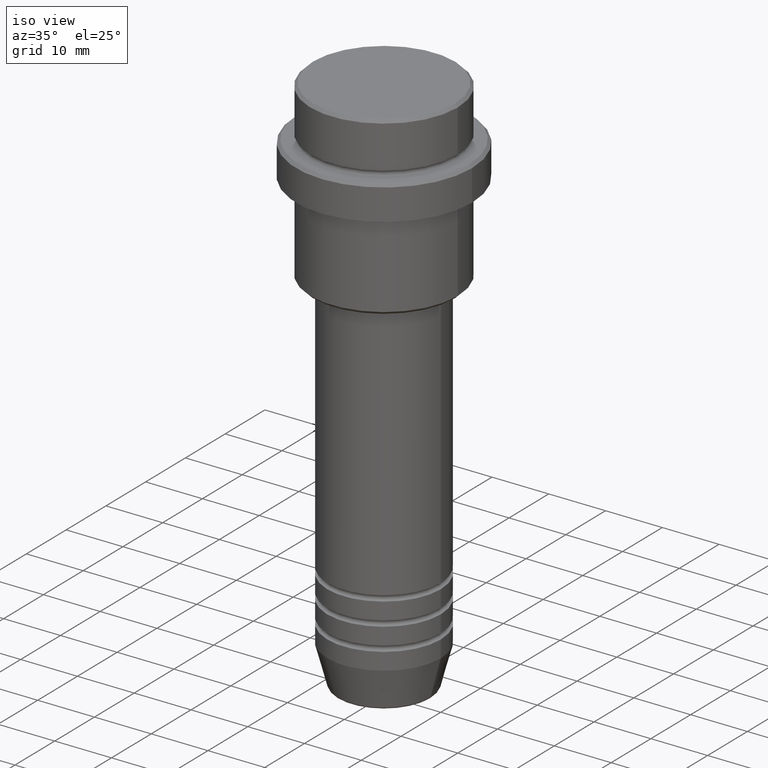
[diagram: clean part render]
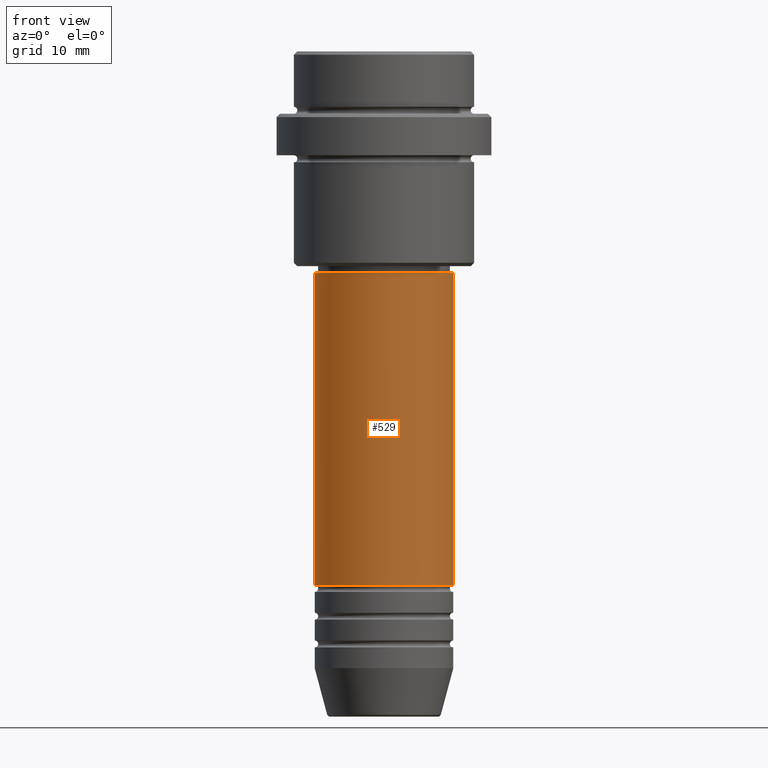
[diagram: tour spotlight — one face highlighted and labeled with its STEP entity id]
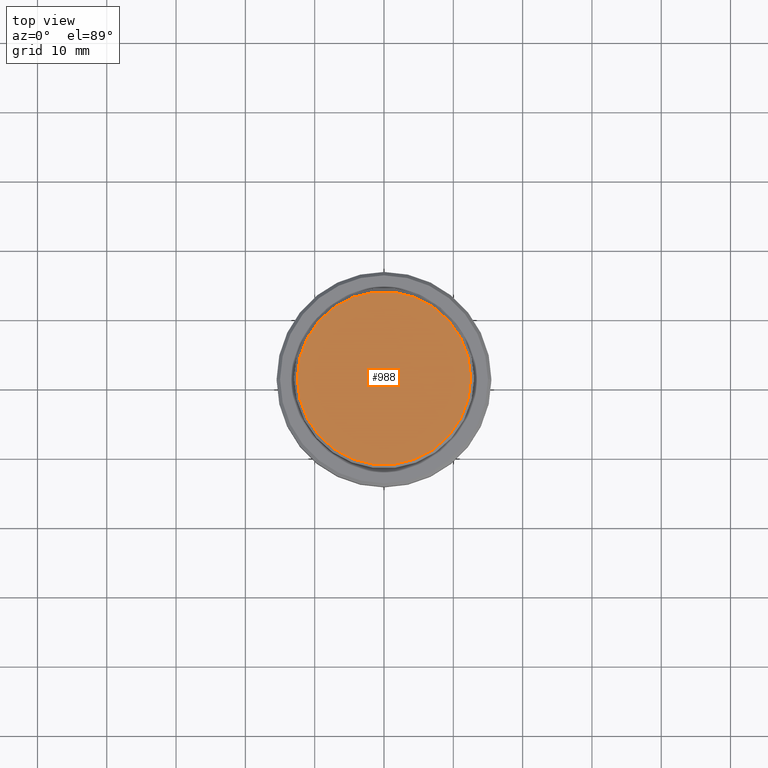
[diagram: tour spotlight — one face highlighted and labeled with its STEP entity id]
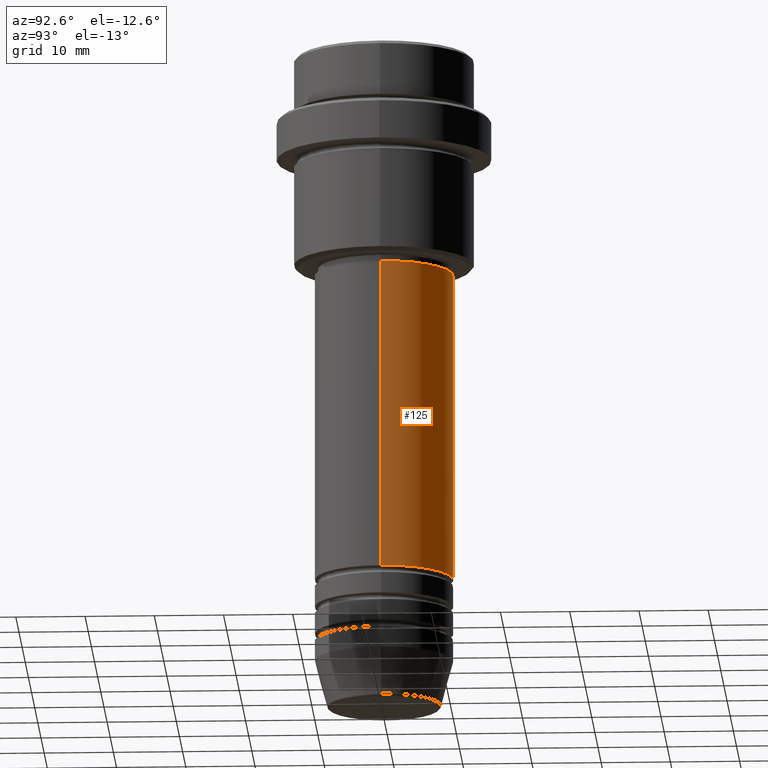
[diagram: tour spotlight — one face highlighted and labeled with its STEP entity id]
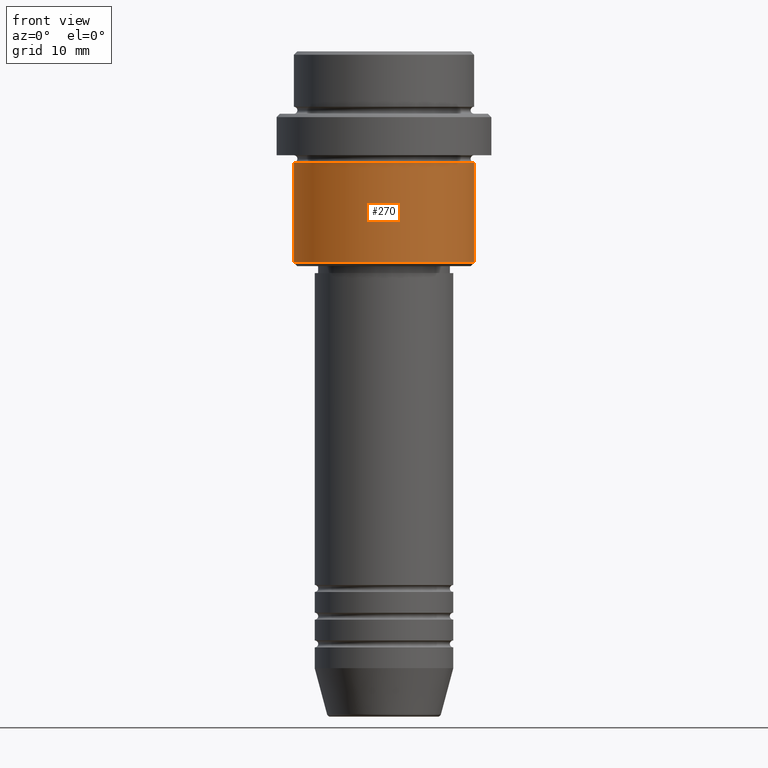
[diagram: tour spotlight — one face highlighted and labeled with its STEP entity id]
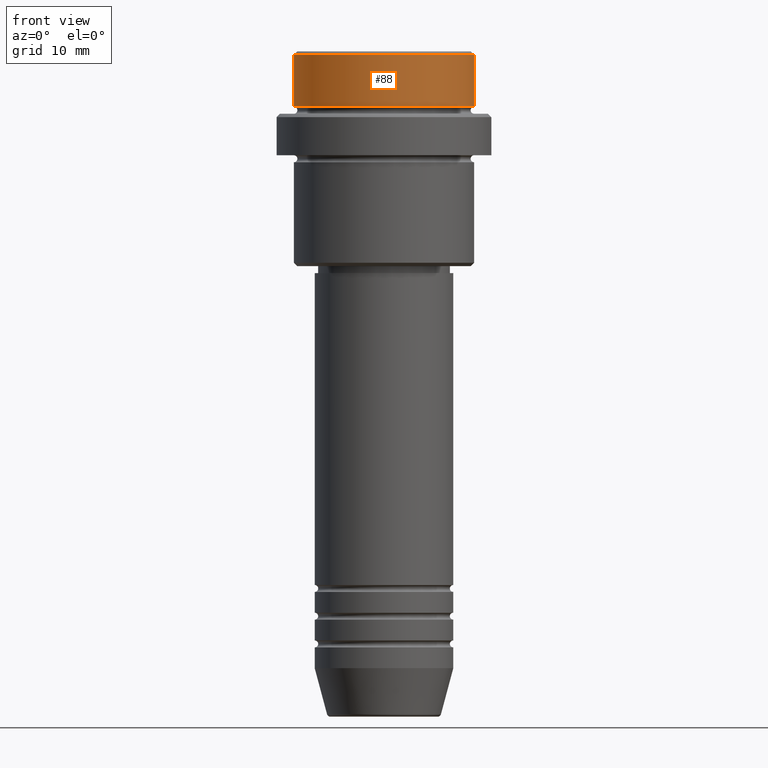
[diagram: tour spotlight — one face highlighted and labeled with its STEP entity id]
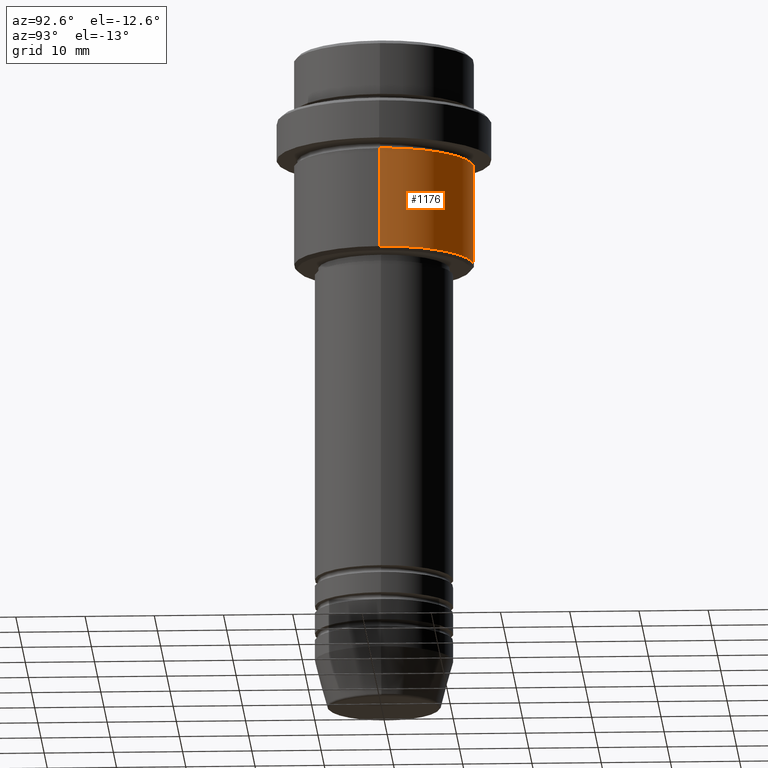
[diagram: tour spotlight — one face highlighted and labeled with its STEP entity id]
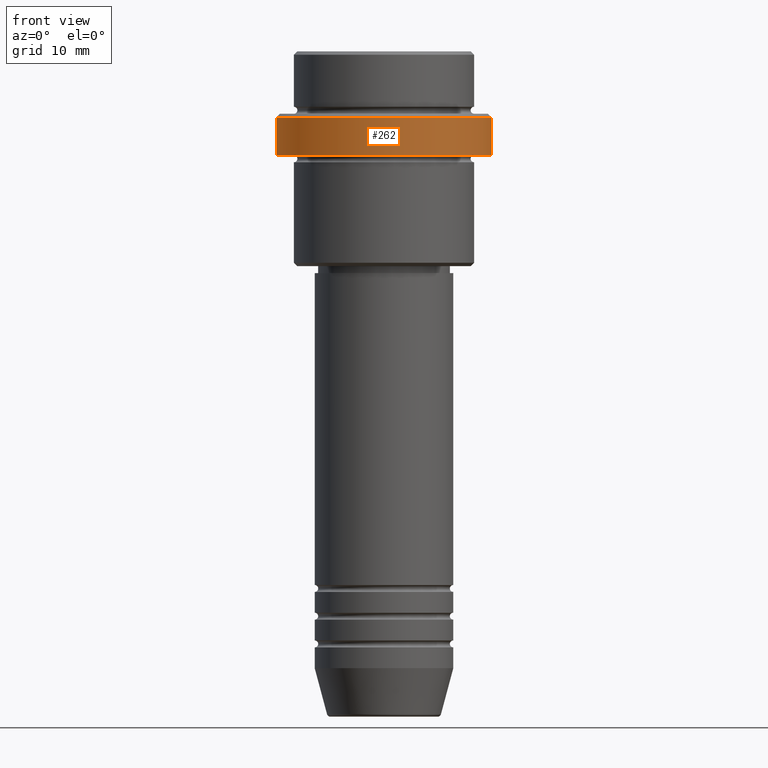
[diagram: tour spotlight — one face highlighted and labeled with its STEP entity id]
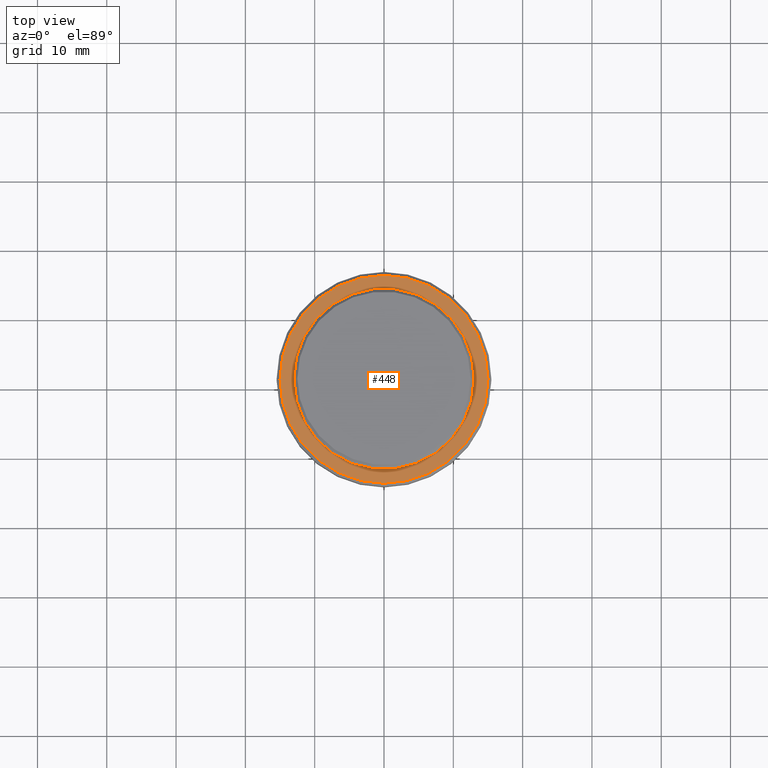
[diagram: tour spotlight — one face highlighted and labeled with its STEP entity id]
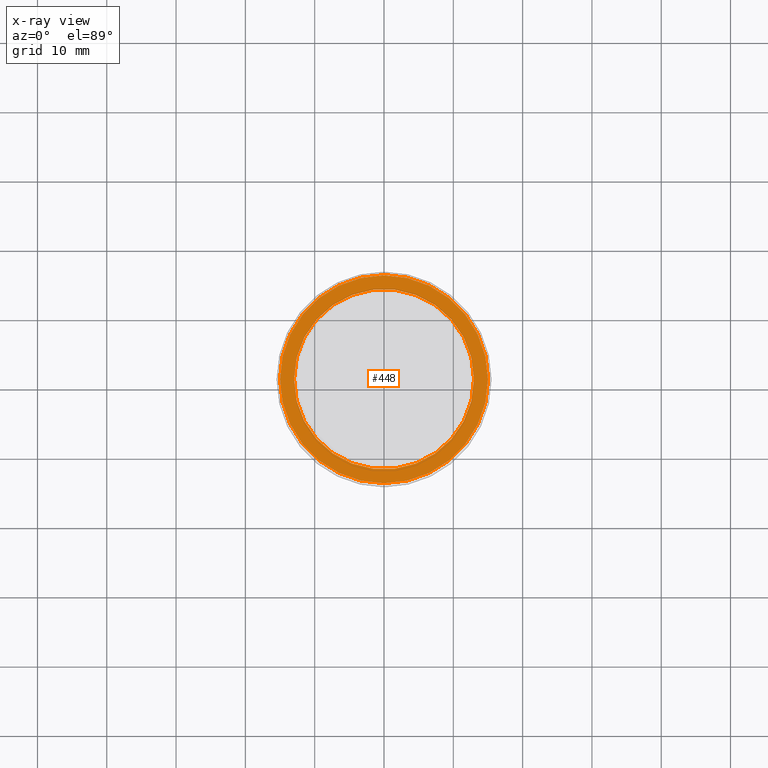
[diagram: x-ray of the same camera — body ghosted, this tour face saturated]
A machine part: a face-by-face anatomy tour. The part has 52 B-rep faces; the first image is the clean iso view, then the 8 largest visible faces are spotlighted one at a time (largest first), each with its STEP entity span.

Face 1 — front view, entity #529. In plain terms, the highlighted cylindrical surface (partial cylindrical patch) has radius 10 mm, axis along (-0, -0, 1).
Definition (entity closure, byte-faithful):
#1 = ORIENTED_EDGE ( 'NONE', *, *, #390, .T. ) ;
#43 = EDGE_CURVE ( 'NONE', #1023, #556, #1269, .T. ) ;
#49 = CIRCLE ( 'NONE', #1038, 10.00000000000000000 ) ;
#148 = DIRECTION ( 'NONE',  ( 1.000000000000000000, 0.000000000000000000, 0.000000000000000000 ) ) ;
#152 = EDGE_CURVE ( 'NONE', #1039, #651, #49, .T. ) ;
#163 = DIRECTION ( 'NONE',  ( 1.000000000000000000, 0.000000000000000000, 0.000000000000000000 ) ) ;
#214 = EDGE_LOOP ( 'NONE', ( #685, #1098, #1, #736 ) ) ;
#247 = DIRECTION ( 'NONE',  ( -0.000000000000000000, -0.000000000000000000, 1.000000000000000000 ) ) ;
#306 = CARTESIAN_POINT ( 'NONE',  ( 10.00000000000000178, 0.000000000000000000, 0.000000000000000000 ) ) ;
#390 = EDGE_CURVE ( 'NONE', #651, #556, #418, .T. ) ;
#404 = VECTOR ( 'NONE', #854, 1000.000000000000000 ) ;
#413 = LINE ( 'NONE', #1280, #1296 ) ;
#418 = LINE ( 'NONE', #306, #404 ) ;
#469 = AXIS2_PLACEMENT_3D ( 'NONE', #697, #247, #148 ) ;
#474 = CYLINDRICAL_SURFACE ( 'NONE', #469, 10.00000000000000178 ) ;
#529 = ADVANCED_FACE ( 'NONE', ( #1018 ), #474, .T. ) ;
#556 = VERTEX_POINT ( 'NONE', #780 ) ;
#651 = VERTEX_POINT ( 'NONE', #1050 ) ;
#684 = CARTESIAN_POINT ( 'NONE',  ( -10.00000000000000000, 1.224646799147353256E-15, -76.99999999999987210 ) ) ;
#685 = ORIENTED_EDGE ( 'NONE', *, *, #985, .F. ) ;
#697 = CARTESIAN_POINT ( 'NONE',  ( 0.000000000000000000, 0.000000000000000000, 0.000000000000000000 ) ) ;
#736 = ORIENTED_EDGE ( 'NONE', *, *, #43, .F. ) ;
#780 = CARTESIAN_POINT ( 'NONE',  ( 10.00000000000000178, 0.000000000000000000, -31.99999999999997868 ) ) ;
#854 = DIRECTION ( 'NONE',  ( -0.000000000000000000, -0.000000000000000000, 1.000000000000000000 ) ) ;
#910 = CARTESIAN_POINT ( 'NONE',  ( 0.000000000000000000, 0.000000000000000000, -31.99999999999997868 ) ) ;
#985 = EDGE_CURVE ( 'NONE', #1039, #1023, #413, .T. ) ;
#1018 = FACE_OUTER_BOUND ( 'NONE', #214, .T. ) ;
#1023 = VERTEX_POINT ( 'NONE', #1057 ) ;
#1032 = DIRECTION ( 'NONE',  ( -0.000000000000000000, -0.000000000000000000, 1.000000000000000000 ) ) ;
#1038 = AXIS2_PLACEMENT_3D ( 'NONE', #1145, #1032, #163 ) ;
#1039 = VERTEX_POINT ( 'NONE', #684 ) ;
#1050 = CARTESIAN_POINT ( 'NONE',  ( 10.00000000000000000, 0.000000000000000000, -76.99999999999987210 ) ) ;
#1057 = CARTESIAN_POINT ( 'NONE',  ( -10.00000000000000178, 1.224646799147353454E-15, -31.99999999999997868 ) ) ;
#1093 = AXIS2_PLACEMENT_3D ( 'NONE', #910, #1124, #1129 ) ;
#1098 = ORIENTED_EDGE ( 'NONE', *, *, #152, .T. ) ;
#1124 = DIRECTION ( 'NONE',  ( -0.000000000000000000, -0.000000000000000000, 1.000000000000000000 ) ) ;
#1129 = DIRECTION ( 'NONE',  ( 1.000000000000000000, 0.000000000000000000, 0.000000000000000000 ) ) ;
#1145 = CARTESIAN_POINT ( 'NONE',  ( 0.000000000000000000, 0.000000000000000000, -76.99999999999987210 ) ) ;
#1269 = CIRCLE ( 'NONE', #1093, 10.00000000000000178 ) ;
#1280 = CARTESIAN_POINT ( 'NONE',  ( -10.00000000000000178, 1.224646799147353454E-15, 0.000000000000000000 ) ) ;
#1296 = VECTOR ( 'NONE', #1312, 1000.000000000000000 ) ;
#1312 = DIRECTION ( 'NONE',  ( -0.000000000000000000, -0.000000000000000000, 1.000000000000000000 ) ) ;

Face 2 — top view, entity #988. In plain terms, the highlighted planar face has unit normal (0, -0, 1).
Definition (entity closure, byte-faithful):
#25 = EDGE_LOOP ( 'NONE', ( #253, #788 ) ) ;
#38 = EDGE_CURVE ( 'NONE', #462, #1308, #1335, .T. ) ;
#79 = DIRECTION ( 'NONE',  ( -0.000000000000000000, -0.000000000000000000, 1.000000000000000000 ) ) ;
#93 = CARTESIAN_POINT ( 'NONE',  ( 0.000000000000000000, 0.000000000000000000, 0.000000000000000000 ) ) ;
#230 = CARTESIAN_POINT ( 'NONE',  ( 12.50000000000001243, 1.561424668912876097E-15, 0.000000000000000000 ) ) ;
#233 = CIRCLE ( 'NONE', #428, 12.50000000000001243 ) ;
#235 = AXIS2_PLACEMENT_3D ( 'NONE', #350, #371, #692 ) ;
#253 = ORIENTED_EDGE ( 'NONE', *, *, #974, .T. ) ;
#292 = FACE_OUTER_BOUND ( 'NONE', #25, .T. ) ;
#350 = CARTESIAN_POINT ( 'NONE',  ( 0.000000000000000000, 0.000000000000000000, 0.000000000000000000 ) ) ;
#371 = DIRECTION ( 'NONE',  ( -0.000000000000000000, -0.000000000000000000, 1.000000000000000000 ) ) ;
#428 = AXIS2_PLACEMENT_3D ( 'NONE', #93, #79, #1406 ) ;
#438 = CARTESIAN_POINT ( 'NONE',  ( -12.50000000000001243, 0.000000000000000000, 0.000000000000000000 ) ) ;
#439 = CARTESIAN_POINT ( 'NONE',  ( 0.000000000000000000, 0.000000000000000000, 0.000000000000000000 ) ) ;
#462 = VERTEX_POINT ( 'NONE', #230 ) ;
#509 = DIRECTION ( 'NONE',  ( 0.000000000000000000, -0.000000000000000000, 1.000000000000000000 ) ) ;
#535 = DIRECTION ( 'NONE',  ( 1.000000000000000000, 0.000000000000000000, 0.000000000000000000 ) ) ;
#692 = DIRECTION ( 'NONE',  ( 1.000000000000000000, 0.000000000000000000, 0.000000000000000000 ) ) ;
#788 = ORIENTED_EDGE ( 'NONE', *, *, #38, .T. ) ;
#849 = PLANE ( 'NONE',  #1156 ) ;
#974 = EDGE_CURVE ( 'NONE', #1308, #462, #233, .T. ) ;
#988 = ADVANCED_FACE ( 'NONE', ( #292 ), #849, .T. ) ;
#1156 = AXIS2_PLACEMENT_3D ( 'NONE', #439, #509, #535 ) ;
#1308 = VERTEX_POINT ( 'NONE', #438 ) ;
#1335 = CIRCLE ( 'NONE', #235, 12.50000000000001243 ) ;
#1406 = DIRECTION ( 'NONE',  ( 1.000000000000000000, 0.000000000000000000, 0.000000000000000000 ) ) ;

Face 3 — auxiliary view, entity #125. In plain terms, the highlighted cylindrical surface (partial cylindrical patch) has radius 10 mm, axis along (-0, -0, 1).
Definition (entity closure, byte-faithful):
#99 = CARTESIAN_POINT ( 'NONE',  ( 0.000000000000000000, 0.000000000000000000, -31.99999999999997868 ) ) ;
#125 = ADVANCED_FACE ( 'NONE', ( #795 ), #1119, .T. ) ;
#171 = CIRCLE ( 'NONE', #983, 10.00000000000000178 ) ;
#205 = ORIENTED_EDGE ( 'NONE', *, *, #390, .F. ) ;
#245 = DIRECTION ( 'NONE',  ( 1.000000000000000000, 0.000000000000000000, 0.000000000000000000 ) ) ;
#251 = DIRECTION ( 'NONE',  ( 1.000000000000000000, 0.000000000000000000, 0.000000000000000000 ) ) ;
#273 = DIRECTION ( 'NONE',  ( -0.000000000000000000, -0.000000000000000000, 1.000000000000000000 ) ) ;
#306 = CARTESIAN_POINT ( 'NONE',  ( 10.00000000000000178, 0.000000000000000000, 0.000000000000000000 ) ) ;
#346 = AXIS2_PLACEMENT_3D ( 'NONE', #826, #273, #251 ) ;
#390 = EDGE_CURVE ( 'NONE', #651, #556, #418, .T. ) ;
#404 = VECTOR ( 'NONE', #854, 1000.000000000000000 ) ;
#413 = LINE ( 'NONE', #1280, #1296 ) ;
#418 = LINE ( 'NONE', #306, #404 ) ;
#461 = CARTESIAN_POINT ( 'NONE',  ( 0.000000000000000000, 0.000000000000000000, 0.000000000000000000 ) ) ;
#485 = EDGE_LOOP ( 'NONE', ( #1013, #1049, #1295, #205 ) ) ;
#543 = DIRECTION ( 'NONE',  ( -0.000000000000000000, -0.000000000000000000, 1.000000000000000000 ) ) ;
#556 = VERTEX_POINT ( 'NONE', #780 ) ;
#651 = VERTEX_POINT ( 'NONE', #1050 ) ;
#684 = CARTESIAN_POINT ( 'NONE',  ( -10.00000000000000000, 1.224646799147353256E-15, -76.99999999999987210 ) ) ;
#780 = CARTESIAN_POINT ( 'NONE',  ( 10.00000000000000178, 0.000000000000000000, -31.99999999999997868 ) ) ;
#795 = FACE_OUTER_BOUND ( 'NONE', #485, .T. ) ;
#826 = CARTESIAN_POINT ( 'NONE',  ( 0.000000000000000000, 0.000000000000000000, -76.99999999999987210 ) ) ;
#854 = DIRECTION ( 'NONE',  ( -0.000000000000000000, -0.000000000000000000, 1.000000000000000000 ) ) ;
#896 = DIRECTION ( 'NONE',  ( -0.000000000000000000, -0.000000000000000000, 1.000000000000000000 ) ) ;
#920 = EDGE_CURVE ( 'NONE', #651, #1039, #1229, .T. ) ;
#950 = AXIS2_PLACEMENT_3D ( 'NONE', #461, #896, #245 ) ;
#983 = AXIS2_PLACEMENT_3D ( 'NONE', #99, #543, #1417 ) ;
#985 = EDGE_CURVE ( 'NONE', #1039, #1023, #413, .T. ) ;
#1013 = ORIENTED_EDGE ( 'NONE', *, *, #920, .T. ) ;
#1019 = EDGE_CURVE ( 'NONE', #556, #1023, #171, .T. ) ;
#1023 = VERTEX_POINT ( 'NONE', #1057 ) ;
#1039 = VERTEX_POINT ( 'NONE', #684 ) ;
#1049 = ORIENTED_EDGE ( 'NONE', *, *, #985, .T. ) ;
#1050 = CARTESIAN_POINT ( 'NONE',  ( 10.00000000000000000, 0.000000000000000000, -76.99999999999987210 ) ) ;
#1057 = CARTESIAN_POINT ( 'NONE',  ( -10.00000000000000178, 1.224646799147353454E-15, -31.99999999999997868 ) ) ;
#1119 = CYLINDRICAL_SURFACE ( 'NONE', #950, 10.00000000000000178 ) ;
#1229 = CIRCLE ( 'NONE', #346, 10.00000000000000000 ) ;
#1280 = CARTESIAN_POINT ( 'NONE',  ( -10.00000000000000178, 1.224646799147353454E-15, 0.000000000000000000 ) ) ;
#1295 = ORIENTED_EDGE ( 'NONE', *, *, #1019, .F. ) ;
#1296 = VECTOR ( 'NONE', #1312, 1000.000000000000000 ) ;
#1312 = DIRECTION ( 'NONE',  ( -0.000000000000000000, -0.000000000000000000, 1.000000000000000000 ) ) ;
#1417 = DIRECTION ( 'NONE',  ( 1.000000000000000000, 0.000000000000000000, 0.000000000000000000 ) ) ;

Face 4 — front view, entity #270. In plain terms, the highlighted cylindrical surface (partial cylindrical patch) has radius 13 mm, axis along (-0, -0, 1).
Definition (entity closure, byte-faithful):
#21 = CARTESIAN_POINT ( 'NONE',  ( 0.000000000000000000, 0.000000000000000000, -16.00000000000000000 ) ) ;
#34 = VECTOR ( 'NONE', #1263, 1000.000000000000000 ) ;
#89 = CARTESIAN_POINT ( 'NONE',  ( -13.00000000000000000, 1.592040838891559095E-15, -16.00000000000000000 ) ) ;
#108 = VERTEX_POINT ( 'NONE', #470 ) ;
#161 = LINE ( 'NONE', #295, #34 ) ;
#193 = DIRECTION ( 'NONE',  ( -0.000000000000000000, -0.000000000000000000, 1.000000000000000000 ) ) ;
#226 = VERTEX_POINT ( 'NONE', #928 ) ;
#254 = DIRECTION ( 'NONE',  ( -0.000000000000000000, -0.000000000000000000, 1.000000000000000000 ) ) ;
#270 = ADVANCED_FACE ( 'NONE', ( #1284 ), #297, .T. ) ;
#283 = EDGE_CURVE ( 'NONE', #226, #108, #488, .T. ) ;
#295 = CARTESIAN_POINT ( 'NONE',  ( 13.00000000000000000, 0.000000000000000000, 0.000000000000000000 ) ) ;
#297 = CYLINDRICAL_SURFACE ( 'NONE', #608, 13.00000000000000000 ) ;
#348 = CIRCLE ( 'NONE', #980, 13.00000000000000000 ) ;
#354 = CARTESIAN_POINT ( 'NONE',  ( -13.00000000000000000, 1.592040838891559095E-15, 0.000000000000000000 ) ) ;
#356 = DIRECTION ( 'NONE',  ( 1.000000000000000000, 0.000000000000000000, 0.000000000000000000 ) ) ;
#441 = DIRECTION ( 'NONE',  ( -0.000000000000000000, -0.000000000000000000, 1.000000000000000000 ) ) ;
#467 = EDGE_CURVE ( 'NONE', #971, #501, #348, .T. ) ;
#470 = CARTESIAN_POINT ( 'NONE',  ( 13.00000000000000000, 0.000000000000000000, -30.49999999999999645 ) ) ;
#488 = CIRCLE ( 'NONE', #1016, 13.00000000000000000 ) ;
#501 = VERTEX_POINT ( 'NONE', #798 ) ;
#526 = DIRECTION ( 'NONE',  ( 1.000000000000000000, 0.000000000000000000, 0.000000000000000000 ) ) ;
#541 = ORIENTED_EDGE ( 'NONE', *, *, #1060, .F. ) ;
#560 = LINE ( 'NONE', #354, #867 ) ;
#595 = EDGE_CURVE ( 'NONE', #108, #501, #161, .T. ) ;
#600 = ORIENTED_EDGE ( 'NONE', *, *, #595, .T. ) ;
#608 = AXIS2_PLACEMENT_3D ( 'NONE', #743, #193, #526 ) ;
#743 = CARTESIAN_POINT ( 'NONE',  ( 0.000000000000000000, 0.000000000000000000, 0.000000000000000000 ) ) ;
#798 = CARTESIAN_POINT ( 'NONE',  ( 13.00000000000000000, 0.000000000000000000, -16.00000000000000000 ) ) ;
#859 = DIRECTION ( 'NONE',  ( -1.000000000000000000, 0.000000000000000000, 0.000000000000000000 ) ) ;
#867 = VECTOR ( 'NONE', #1209, 1000.000000000000000 ) ;
#928 = CARTESIAN_POINT ( 'NONE',  ( -13.00000000000000000, 1.592040838891559095E-15, -30.49999999999999645 ) ) ;
#971 = VERTEX_POINT ( 'NONE', #89 ) ;
#980 = AXIS2_PLACEMENT_3D ( 'NONE', #21, #254, #356 ) ;
#1016 = AXIS2_PLACEMENT_3D ( 'NONE', #1398, #441, #859 ) ;
#1060 = EDGE_CURVE ( 'NONE', #226, #971, #560, .T. ) ;
#1089 = ORIENTED_EDGE ( 'NONE', *, *, #467, .F. ) ;
#1209 = DIRECTION ( 'NONE',  ( -0.000000000000000000, -0.000000000000000000, 1.000000000000000000 ) ) ;
#1262 = ORIENTED_EDGE ( 'NONE', *, *, #283, .T. ) ;
#1263 = DIRECTION ( 'NONE',  ( -0.000000000000000000, -0.000000000000000000, 1.000000000000000000 ) ) ;
#1284 = FACE_OUTER_BOUND ( 'NONE', #1313, .T. ) ;
#1313 = EDGE_LOOP ( 'NONE', ( #541, #1262, #600, #1089 ) ) ;
#1398 = CARTESIAN_POINT ( 'NONE',  ( 0.000000000000000000, 0.000000000000000000, -30.49999999999999645 ) ) ;

Face 5 — front view, entity #88. In plain terms, the highlighted cylindrical surface (partial cylindrical patch) has radius 13 mm, axis along (-0, -0, 1).
Definition (entity closure, byte-faithful):
#29 = FACE_OUTER_BOUND ( 'NONE', #537, .T. ) ;
#33 = CIRCLE ( 'NONE', #144, 12.99999999999999822 ) ;
#37 = CYLINDRICAL_SURFACE ( 'NONE', #166, 12.99999999999999822 ) ;
#40 = VERTEX_POINT ( 'NONE', #41 ) ;
#41 = CARTESIAN_POINT ( 'NONE',  ( 12.99999999999999822, 0.000000000000000000, -0.5000000000000038858 ) ) ;
#88 = ADVANCED_FACE ( 'NONE', ( #29 ), #37, .T. ) ;
#144 = AXIS2_PLACEMENT_3D ( 'NONE', #1219, #1123, #465 ) ;
#157 = VERTEX_POINT ( 'NONE', #934 ) ;
#166 = AXIS2_PLACEMENT_3D ( 'NONE', #456, #1333, #476 ) ;
#173 = CARTESIAN_POINT ( 'NONE',  ( 12.99999999999999822, 0.000000000000000000, 0.000000000000000000 ) ) ;
#174 = CARTESIAN_POINT ( 'NONE',  ( 0.000000000000000000, 0.000000000000000000, -7.999999999999998224 ) ) ;
#303 = VERTEX_POINT ( 'NONE', #436 ) ;
#316 = LINE ( 'NONE', #539, #1273 ) ;
#325 = ORIENTED_EDGE ( 'NONE', *, *, #669, .T. ) ;
#351 = CIRCLE ( 'NONE', #1109, 12.99999999999999822 ) ;
#400 = EDGE_CURVE ( 'NONE', #157, #1373, #316, .T. ) ;
#436 = CARTESIAN_POINT ( 'NONE',  ( 12.99999999999999822, 0.000000000000000000, -7.999999999999998224 ) ) ;
#456 = CARTESIAN_POINT ( 'NONE',  ( 0.000000000000000000, 0.000000000000000000, 0.000000000000000000 ) ) ;
#465 = DIRECTION ( 'NONE',  ( 1.000000000000000000, 0.000000000000000000, 0.000000000000000000 ) ) ;
#476 = DIRECTION ( 'NONE',  ( 1.000000000000000000, 0.000000000000000000, 0.000000000000000000 ) ) ;
#515 = EDGE_CURVE ( 'NONE', #40, #1373, #33, .T. ) ;
#537 = EDGE_LOOP ( 'NONE', ( #1206, #872, #325, #1199 ) ) ;
#539 = CARTESIAN_POINT ( 'NONE',  ( -12.99999999999999822, 1.592040838891558898E-15, 0.000000000000000000 ) ) ;
#548 = VECTOR ( 'NONE', #717, 1000.000000000000000 ) ;
#669 = EDGE_CURVE ( 'NONE', #303, #40, #946, .T. ) ;
#717 = DIRECTION ( 'NONE',  ( -0.000000000000000000, -0.000000000000000000, 1.000000000000000000 ) ) ;
#764 = DIRECTION ( 'NONE',  ( -0.000000000000000000, -0.000000000000000000, 1.000000000000000000 ) ) ;
#872 = ORIENTED_EDGE ( 'NONE', *, *, #895, .T. ) ;
#895 = EDGE_CURVE ( 'NONE', #157, #303, #351, .T. ) ;
#934 = CARTESIAN_POINT ( 'NONE',  ( -12.99999999999999822, 1.592040838891558898E-15, -7.999999999999998224 ) ) ;
#946 = LINE ( 'NONE', #173, #548 ) ;
#990 = DIRECTION ( 'NONE',  ( 1.000000000000000000, 0.000000000000000000, 0.000000000000000000 ) ) ;
#1109 = AXIS2_PLACEMENT_3D ( 'NONE', #174, #1291, #990 ) ;
#1123 = DIRECTION ( 'NONE',  ( 0.000000000000000000, 0.000000000000000000, -1.000000000000000000 ) ) ;
#1170 = CARTESIAN_POINT ( 'NONE',  ( -12.99999999999999822, 1.592040838891558898E-15, -0.5000000000000038858 ) ) ;
#1199 = ORIENTED_EDGE ( 'NONE', *, *, #515, .T. ) ;
#1206 = ORIENTED_EDGE ( 'NONE', *, *, #400, .F. ) ;
#1219 = CARTESIAN_POINT ( 'NONE',  ( 0.000000000000000000, 0.000000000000000000, -0.5000000000000038858 ) ) ;
#1273 = VECTOR ( 'NONE', #764, 1000.000000000000000 ) ;
#1291 = DIRECTION ( 'NONE',  ( -0.000000000000000000, -0.000000000000000000, 1.000000000000000000 ) ) ;
#1333 = DIRECTION ( 'NONE',  ( -0.000000000000000000, -0.000000000000000000, 1.000000000000000000 ) ) ;
#1373 = VERTEX_POINT ( 'NONE', #1170 ) ;

Face 6 — auxiliary view, entity #1176. In plain terms, the highlighted cylindrical surface (partial cylindrical patch) has radius 13 mm, axis along (-0, -0, 1).
Definition (entity closure, byte-faithful):
#34 = VECTOR ( 'NONE', #1263, 1000.000000000000000 ) ;
#89 = CARTESIAN_POINT ( 'NONE',  ( -13.00000000000000000, 1.592040838891559095E-15, -16.00000000000000000 ) ) ;
#108 = VERTEX_POINT ( 'NONE', #470 ) ;
#150 = FACE_OUTER_BOUND ( 'NONE', #312, .T. ) ;
#161 = LINE ( 'NONE', #295, #34 ) ;
#216 = CARTESIAN_POINT ( 'NONE',  ( 0.000000000000000000, 0.000000000000000000, -16.00000000000000000 ) ) ;
#226 = VERTEX_POINT ( 'NONE', #928 ) ;
#268 = CARTESIAN_POINT ( 'NONE',  ( 0.000000000000000000, 0.000000000000000000, -30.49999999999999645 ) ) ;
#295 = CARTESIAN_POINT ( 'NONE',  ( 13.00000000000000000, 0.000000000000000000, 0.000000000000000000 ) ) ;
#312 = EDGE_LOOP ( 'NONE', ( #833, #1261, #1202, #1022 ) ) ;
#349 = DIRECTION ( 'NONE',  ( 1.000000000000000000, 0.000000000000000000, 0.000000000000000000 ) ) ;
#354 = CARTESIAN_POINT ( 'NONE',  ( -13.00000000000000000, 1.592040838891559095E-15, 0.000000000000000000 ) ) ;
#470 = CARTESIAN_POINT ( 'NONE',  ( 13.00000000000000000, 0.000000000000000000, -30.49999999999999645 ) ) ;
#480 = DIRECTION ( 'NONE',  ( -1.000000000000000000, 0.000000000000000000, 0.000000000000000000 ) ) ;
#486 = DIRECTION ( 'NONE',  ( -0.000000000000000000, -0.000000000000000000, 1.000000000000000000 ) ) ;
#501 = VERTEX_POINT ( 'NONE', #798 ) ;
#560 = LINE ( 'NONE', #354, #867 ) ;
#595 = EDGE_CURVE ( 'NONE', #108, #501, #161, .T. ) ;
#607 = CIRCLE ( 'NONE', #773, 13.00000000000000000 ) ;
#676 = DIRECTION ( 'NONE',  ( 1.000000000000000000, 0.000000000000000000, 0.000000000000000000 ) ) ;
#683 = EDGE_CURVE ( 'NONE', #108, #226, #1162, .T. ) ;
#773 = AXIS2_PLACEMENT_3D ( 'NONE', #216, #1106, #676 ) ;
#798 = CARTESIAN_POINT ( 'NONE',  ( 13.00000000000000000, 0.000000000000000000, -16.00000000000000000 ) ) ;
#815 = CARTESIAN_POINT ( 'NONE',  ( 0.000000000000000000, 0.000000000000000000, 0.000000000000000000 ) ) ;
#817 = AXIS2_PLACEMENT_3D ( 'NONE', #268, #486, #480 ) ;
#833 = ORIENTED_EDGE ( 'NONE', *, *, #683, .T. ) ;
#867 = VECTOR ( 'NONE', #1209, 1000.000000000000000 ) ;
#928 = CARTESIAN_POINT ( 'NONE',  ( -13.00000000000000000, 1.592040838891559095E-15, -30.49999999999999645 ) ) ;
#971 = VERTEX_POINT ( 'NONE', #89 ) ;
#1022 = ORIENTED_EDGE ( 'NONE', *, *, #595, .F. ) ;
#1060 = EDGE_CURVE ( 'NONE', #226, #971, #560, .T. ) ;
#1092 = AXIS2_PLACEMENT_3D ( 'NONE', #815, #1150, #349 ) ;
#1106 = DIRECTION ( 'NONE',  ( -0.000000000000000000, -0.000000000000000000, 1.000000000000000000 ) ) ;
#1150 = DIRECTION ( 'NONE',  ( -0.000000000000000000, -0.000000000000000000, 1.000000000000000000 ) ) ;
#1162 = CIRCLE ( 'NONE', #817, 13.00000000000000000 ) ;
#1176 = ADVANCED_FACE ( 'NONE', ( #150 ), #1364, .T. ) ;
#1202 = ORIENTED_EDGE ( 'NONE', *, *, #1411, .F. ) ;
#1209 = DIRECTION ( 'NONE',  ( -0.000000000000000000, -0.000000000000000000, 1.000000000000000000 ) ) ;
#1261 = ORIENTED_EDGE ( 'NONE', *, *, #1060, .T. ) ;
#1263 = DIRECTION ( 'NONE',  ( -0.000000000000000000, -0.000000000000000000, 1.000000000000000000 ) ) ;
#1364 = CYLINDRICAL_SURFACE ( 'NONE', #1092, 13.00000000000000000 ) ;
#1411 = EDGE_CURVE ( 'NONE', #501, #971, #607, .T. ) ;

Face 7 — front view, entity #262. In plain terms, the highlighted cylindrical surface (partial cylindrical patch) has radius 15.5 mm, axis along (-0, -0, 1).
Definition (entity closure, byte-faithful):
#10 = CARTESIAN_POINT ( 'NONE',  ( 15.50000000000000000, 0.000000000000000000, 0.000000000000000000 ) ) ;
#47 = EDGE_LOOP ( 'NONE', ( #362, #693, #1168, #533 ) ) ;
#51 = AXIS2_PLACEMENT_3D ( 'NONE', #747, #195, #1028 ) ;
#75 = FACE_OUTER_BOUND ( 'NONE', #47, .T. ) ;
#82 = DIRECTION ( 'NONE',  ( 1.000000000000000000, 0.000000000000000000, 0.000000000000000000 ) ) ;
#98 = VERTEX_POINT ( 'NONE', #1233 ) ;
#120 = VECTOR ( 'NONE', #1214, 1000.000000000000000 ) ;
#183 = CARTESIAN_POINT ( 'NONE',  ( -15.50000000000000000, 1.898202538678397557E-15, 0.000000000000000000 ) ) ;
#195 = DIRECTION ( 'NONE',  ( -0.000000000000000000, -0.000000000000000000, 1.000000000000000000 ) ) ;
#225 = AXIS2_PLACEMENT_3D ( 'NONE', #1396, #304, #82 ) ;
#262 = ADVANCED_FACE ( 'NONE', ( #75 ), #397, .T. ) ;
#304 = DIRECTION ( 'NONE',  ( 0.000000000000000000, 0.000000000000000000, -1.000000000000000000 ) ) ;
#309 = AXIS2_PLACEMENT_3D ( 'NONE', #1275, #1390, #409 ) ;
#345 = VERTEX_POINT ( 'NONE', #975 ) ;
#362 = ORIENTED_EDGE ( 'NONE', *, *, #1324, .F. ) ;
#369 = DIRECTION ( 'NONE',  ( -0.000000000000000000, -0.000000000000000000, 1.000000000000000000 ) ) ;
#397 = CYLINDRICAL_SURFACE ( 'NONE', #309, 15.50000000000000000 ) ;
#409 = DIRECTION ( 'NONE',  ( 1.000000000000000000, 0.000000000000000000, 0.000000000000000000 ) ) ;
#463 = LINE ( 'NONE', #10, #120 ) ;
#533 = ORIENTED_EDGE ( 'NONE', *, *, #731, .T. ) ;
#693 = ORIENTED_EDGE ( 'NONE', *, *, #1281, .T. ) ;
#731 = EDGE_CURVE ( 'NONE', #98, #796, #841, .T. ) ;
#747 = CARTESIAN_POINT ( 'NONE',  ( 0.000000000000000000, 0.000000000000000000, -15.00000000000000000 ) ) ;
#796 = VERTEX_POINT ( 'NONE', #1369 ) ;
#841 = CIRCLE ( 'NONE', #225, 15.50000000000000000 ) ;
#842 = CARTESIAN_POINT ( 'NONE',  ( -15.50000000000000000, 1.898202538678397557E-15, -15.00000000000000000 ) ) ;
#975 = CARTESIAN_POINT ( 'NONE',  ( 15.50000000000000000, 0.000000000000000000, -15.00000000000000000 ) ) ;
#1028 = DIRECTION ( 'NONE',  ( 1.000000000000000000, 0.000000000000000000, 0.000000000000000000 ) ) ;
#1052 = LINE ( 'NONE', #183, #1134 ) ;
#1134 = VECTOR ( 'NONE', #369, 1000.000000000000000 ) ;
#1168 = ORIENTED_EDGE ( 'NONE', *, *, #1345, .T. ) ;
#1185 = CIRCLE ( 'NONE', #51, 15.50000000000000000 ) ;
#1214 = DIRECTION ( 'NONE',  ( -0.000000000000000000, -0.000000000000000000, 1.000000000000000000 ) ) ;
#1233 = CARTESIAN_POINT ( 'NONE',  ( 15.50000000000000000, 0.000000000000000000, -9.499999999999998224 ) ) ;
#1235 = VERTEX_POINT ( 'NONE', #842 ) ;
#1275 = CARTESIAN_POINT ( 'NONE',  ( 0.000000000000000000, 0.000000000000000000, 0.000000000000000000 ) ) ;
#1281 = EDGE_CURVE ( 'NONE', #1235, #345, #1185, .T. ) ;
#1324 = EDGE_CURVE ( 'NONE', #1235, #796, #1052, .T. ) ;
#1345 = EDGE_CURVE ( 'NONE', #345, #98, #463, .T. ) ;
#1369 = CARTESIAN_POINT ( 'NONE',  ( -15.50000000000000000, 1.898202538678397557E-15, -9.499999999999998224 ) ) ;
#1390 = DIRECTION ( 'NONE',  ( -0.000000000000000000, -0.000000000000000000, 1.000000000000000000 ) ) ;
#1396 = CARTESIAN_POINT ( 'NONE',  ( 0.000000000000000000, 0.000000000000000000, -9.499999999999998224 ) ) ;

Face 8 — top view, entity #448. An x-ray twin of the same camera follows (body ghosted, this face saturated) — the face is partly hidden behind the body. In plain terms, the highlighted planar face has unit normal (0, -0, 1).
Definition (entity closure, byte-faithful):
#11 = FACE_BOUND ( 'NONE', #1310, .T. ) ;
#24 = DIRECTION ( 'NONE',  ( 0.000000000000000000, 0.000000000000000000, -1.000000000000000000 ) ) ;
#48 = AXIS2_PLACEMENT_3D ( 'NONE', #128, #24, #1337 ) ;
#59 = CARTESIAN_POINT ( 'NONE',  ( 15.00000000000001421, 1.867586368699714559E-15, -9.000000000000000000 ) ) ;
#95 = ORIENTED_EDGE ( 'NONE', *, *, #1075, .T. ) ;
#106 = CARTESIAN_POINT ( 'NONE',  ( 0.000000000000000000, 0.000000000000000000, -9.000000000000000000 ) ) ;
#128 = CARTESIAN_POINT ( 'NONE',  ( 0.000000000000000000, 0.000000000000000000, -9.000000000000000000 ) ) ;
#172 = VERTEX_POINT ( 'NONE', #59 ) ;
#234 = DIRECTION ( 'NONE',  ( 1.000000000000000000, 0.000000000000000000, 0.000000000000000000 ) ) ;
#238 = AXIS2_PLACEMENT_3D ( 'NONE', #106, #578, #573 ) ;
#359 = DIRECTION ( 'NONE',  ( 1.000000000000000000, 0.000000000000000000, 0.000000000000000000 ) ) ;
#422 = ORIENTED_EDGE ( 'NONE', *, *, #1378, .T. ) ;
#435 = EDGE_CURVE ( 'NONE', #935, #1166, #865, .T. ) ;
#446 = DIRECTION ( 'NONE',  ( -0.000000000000000000, -0.000000000000000000, 1.000000000000000000 ) ) ;
#448 = ADVANCED_FACE ( 'NONE', ( #1327, #11 ), #908, .T. ) ;
#451 = DIRECTION ( 'NONE',  ( 0.000000000000000000, -0.000000000000000000, 1.000000000000000000 ) ) ;
#573 = DIRECTION ( 'NONE',  ( 1.000000000000000000, 0.000000000000000000, 0.000000000000000000 ) ) ;
#578 = DIRECTION ( 'NONE',  ( 0.000000000000000000, 0.000000000000000000, -1.000000000000000000 ) ) ;
#604 = AXIS2_PLACEMENT_3D ( 'NONE', #995, #883, #359 ) ;
#629 = CARTESIAN_POINT ( 'NONE',  ( 0.000000000000000000, 0.000000000000000000, -9.000000000000000000 ) ) ;
#855 = ORIENTED_EDGE ( 'NONE', *, *, #1051, .T. ) ;
#857 = DIRECTION ( 'NONE',  ( 1.000000000000000000, 0.000000000000000000, 0.000000000000000000 ) ) ;
#865 = CIRCLE ( 'NONE', #238, 12.99999999999999467 ) ;
#883 = DIRECTION ( 'NONE',  ( -0.000000000000000000, -0.000000000000000000, 1.000000000000000000 ) ) ;
#908 = PLANE ( 'NONE',  #1410 ) ;
#935 = VERTEX_POINT ( 'NONE', #1288 ) ;
#984 = ORIENTED_EDGE ( 'NONE', *, *, #435, .T. ) ;
#995 = CARTESIAN_POINT ( 'NONE',  ( 0.000000000000000000, 0.000000000000000000, -9.000000000000000000 ) ) ;
#1011 = CARTESIAN_POINT ( 'NONE',  ( 0.000000000000000000, 12.49999999999999289, -9.000000000000000000 ) ) ;
#1029 = VERTEX_POINT ( 'NONE', #1218 ) ;
#1051 = EDGE_CURVE ( 'NONE', #1166, #935, #1416, .T. ) ;
#1075 = EDGE_CURVE ( 'NONE', #172, #1029, #1222, .T. ) ;
#1086 = EDGE_LOOP ( 'NONE', ( #422, #95 ) ) ;
#1159 = CIRCLE ( 'NONE', #1246, 15.00000000000001421 ) ;
#1166 = VERTEX_POINT ( 'NONE', #1171 ) ;
#1171 = CARTESIAN_POINT ( 'NONE',  ( 12.99999999999999467, 0.000000000000000000, -9.000000000000000000 ) ) ;
#1218 = CARTESIAN_POINT ( 'NONE',  ( -15.00000000000001421, 0.000000000000000000, -9.000000000000000000 ) ) ;
#1222 = CIRCLE ( 'NONE', #604, 15.00000000000001421 ) ;
#1246 = AXIS2_PLACEMENT_3D ( 'NONE', #629, #446, #857 ) ;
#1288 = CARTESIAN_POINT ( 'NONE',  ( -12.99999999999999467, 1.592040838891558504E-15, -9.000000000000000000 ) ) ;
#1310 = EDGE_LOOP ( 'NONE', ( #855, #984 ) ) ;
#1327 = FACE_OUTER_BOUND ( 'NONE', #1086, .T. ) ;
#1337 = DIRECTION ( 'NONE',  ( 1.000000000000000000, 0.000000000000000000, 0.000000000000000000 ) ) ;
#1378 = EDGE_CURVE ( 'NONE', #1029, #172, #1159, .T. ) ;
#1410 = AXIS2_PLACEMENT_3D ( 'NONE', #1011, #451, #234 ) ;
#1416 = CIRCLE ( 'NONE', #48, 12.99999999999999467 ) ;